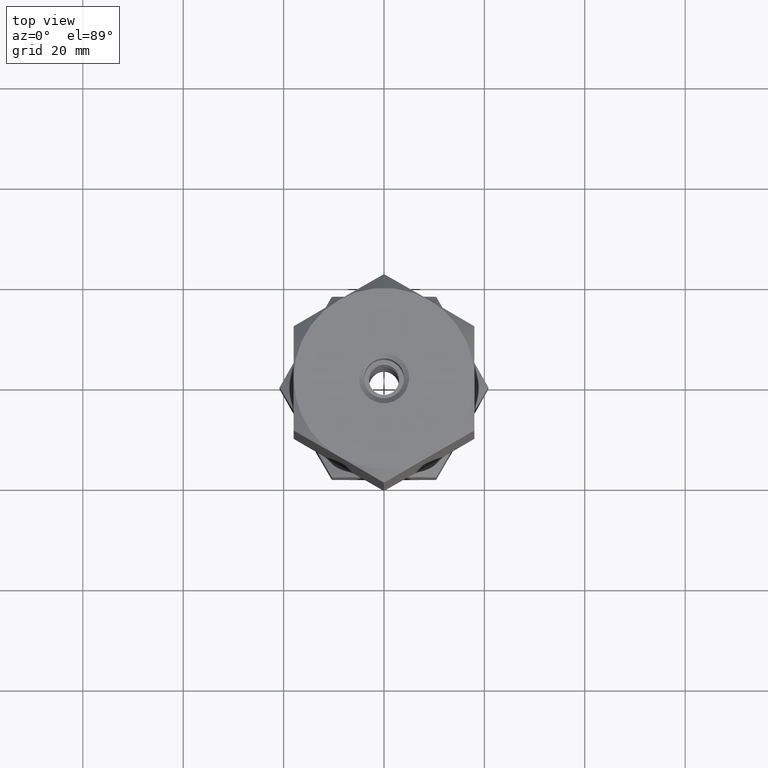
[diagram: clean part render]
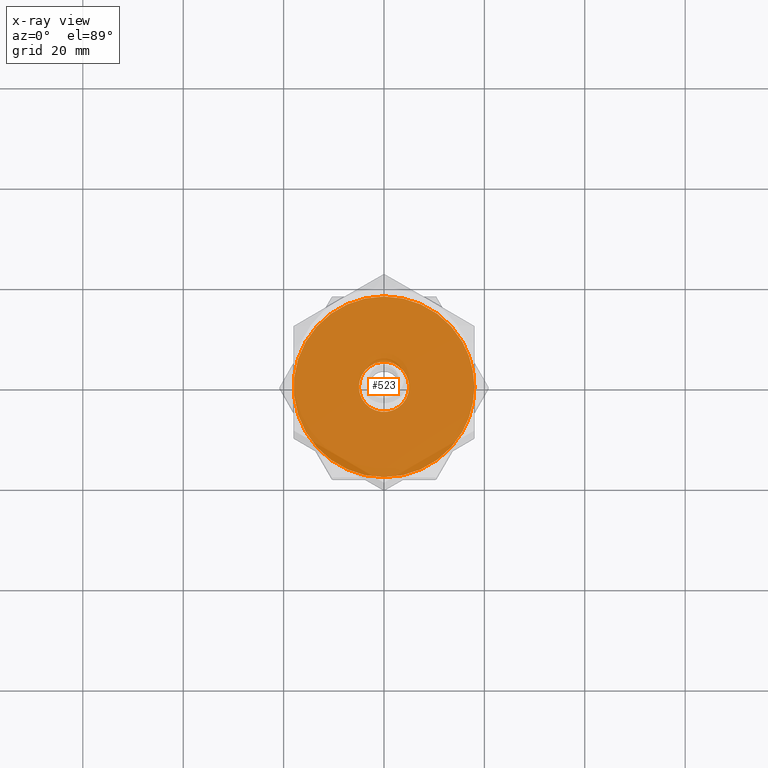
[diagram: x-ray — body ghosted, one internal face saturated and labeled with its STEP entity id]
A machine part, top view, then the same camera in x-ray: the body is ghosted and one INTERNAL B-rep face — a face not visible from any outside direction — is saturated and labeled: STEP entity #523.
In plain terms, the highlighted planar face has unit normal (0, 0, 1).
Its self-contained STEP definition (entity closure, byte-faithful):
#34 = PLANE ( 'NONE',  #1798 ) ;
#35 = AXIS2_PLACEMENT_3D ( 'NONE', #269, #623, #1556 ) ;
#70 = AXIS2_PLACEMENT_3D ( 'NONE', #139, #941, #2040 ) ;
#71 = ORIENTED_EDGE ( 'NONE', *, *, #1909, .T. ) ;
#74 = CIRCLE ( 'NONE', #35, 18.00000000000000000 ) ;
#139 = CARTESIAN_POINT ( 'NONE',  ( 0.000000000000000000, 0.000000000000000000, 33.33333333333330017 ) ) ;
#167 = ORIENTED_EDGE ( 'NONE', *, *, #1706, .T. ) ;
#172 = VERTEX_POINT ( 'NONE', #1578 ) ;
#174 = DIRECTION ( 'NONE',  ( 0.000000000000000000, 0.000000000000000000, 1.000000000000000000 ) ) ;
#194 = CARTESIAN_POINT ( 'NONE',  ( 15.58845726811989252, 9.000000000000003553, 33.33333333333330017 ) ) ;
#201 = VERTEX_POINT ( 'NONE', #194 ) ;
#221 = DIRECTION ( 'NONE',  ( 0.000000000000000000, 0.000000000000000000, -1.000000000000000000 ) ) ;
#258 = DIRECTION ( 'NONE',  ( 0.000000000000000000, 0.000000000000000000, 1.000000000000000000 ) ) ;
#269 = CARTESIAN_POINT ( 'NONE',  ( 0.000000000000000000, 0.000000000000000000, 33.33333333333330017 ) ) ;
#289 = ORIENTED_EDGE ( 'NONE', *, *, #443, .T. ) ;
#320 = DIRECTION ( 'NONE',  ( 1.000000000000000000, 0.000000000000000000, 0.000000000000000000 ) ) ;
#321 = EDGE_CURVE ( 'NONE', #1647, #713, #670, .T. ) ;
#324 = CARTESIAN_POINT ( 'NONE',  ( 0.000000000000000000, 18.00000000000000000, 33.33333333333330017 ) ) ;
#335 = DIRECTION ( 'NONE',  ( 0.000000000000000000, 0.000000000000000000, 1.000000000000000000 ) ) ;
#352 = DIRECTION ( 'NONE',  ( 1.000000000000000000, 0.000000000000000000, 0.000000000000000000 ) ) ;
#367 = EDGE_CURVE ( 'NONE', #201, #1880, #1986, .T. ) ;
#443 = EDGE_CURVE ( 'NONE', #172, #201, #597, .T. ) ;
#448 = ORIENTED_EDGE ( 'NONE', *, *, #321, .T. ) ;
#465 = DIRECTION ( 'NONE',  ( 1.000000000000000000, 0.000000000000000000, 0.000000000000000000 ) ) ;
#523 = ADVANCED_FACE ( 'NONE', ( #995, #1140 ), #34, .T. ) ;
#541 = ORIENTED_EDGE ( 'NONE', *, *, #1836, .T. ) ;
#563 = ORIENTED_EDGE ( 'NONE', *, *, #1143, .T. ) ;
#597 = CIRCLE ( 'NONE', #1608, 18.00000000000000000 ) ;
#605 = ORIENTED_EDGE ( 'NONE', *, *, #828, .T. ) ;
#623 = DIRECTION ( 'NONE',  ( 0.000000000000000000, 0.000000000000000000, 1.000000000000000000 ) ) ;
#636 = DIRECTION ( 'NONE',  ( 1.000000000000000000, 0.000000000000000000, 0.000000000000000000 ) ) ;
#670 = CIRCLE ( 'NONE', #1827, 18.00000000000000000 ) ;
#713 = VERTEX_POINT ( 'NONE', #1428 ) ;
#750 = DIRECTION ( 'NONE',  ( -1.000000000000000000, 0.000000000000000000, 0.000000000000000000 ) ) ;
#803 = CARTESIAN_POINT ( 'NONE',  ( 15.58845726811989429, -9.000000000000001776, 33.33333333333330017 ) ) ;
#811 = CARTESIAN_POINT ( 'NONE',  ( 0.000000000000000000, 0.000000000000000000, 33.33333333333330017 ) ) ;
#828 = EDGE_CURVE ( 'NONE', #1569, #172, #74, .T. ) ;
#869 = CIRCLE ( 'NONE', #1730, 18.00000000000000000 ) ;
#941 = DIRECTION ( 'NONE',  ( 0.000000000000000000, 0.000000000000000000, -1.000000000000000000 ) ) ;
#989 = CARTESIAN_POINT ( 'NONE',  ( 0.000000000000000000, 0.000000000000000000, 33.33333333333330017 ) ) ;
#995 = FACE_BOUND ( 'NONE', #1981, .T. ) ;
#1006 = CARTESIAN_POINT ( 'NONE',  ( 0.000000000000000000, 0.000000000000000000, 33.33333333333330017 ) ) ;
#1033 = AXIS2_PLACEMENT_3D ( 'NONE', #1921, #1803, #1299 ) ;
#1040 = AXIS2_PLACEMENT_3D ( 'NONE', #1067, #221, #750 ) ;
#1059 = CARTESIAN_POINT ( 'NONE',  ( 0.000000000000000000, 0.000000000000000000, 33.33333333333330017 ) ) ;
#1067 = CARTESIAN_POINT ( 'NONE',  ( 0.000000000000000000, 0.000000000000000000, 33.33333333333330017 ) ) ;
#1095 = AXIS2_PLACEMENT_3D ( 'NONE', #1847, #1911, #320 ) ;
#1140 = FACE_OUTER_BOUND ( 'NONE', #1260, .T. ) ;
#1143 = EDGE_CURVE ( 'NONE', #1552, #1312, #1160, .T. ) ;
#1160 = CIRCLE ( 'NONE', #1040, 5.000000000000000000 ) ;
#1162 = CARTESIAN_POINT ( 'NONE',  ( -5.000000000000000000, 0.000000000000000000, 33.33333333333330017 ) ) ;
#1197 = CIRCLE ( 'NONE', #1033, 18.00000000000000000 ) ;
#1260 = EDGE_LOOP ( 'NONE', ( #605, #289, #1392, #71, #448, #541, #1858 ) ) ;
#1299 = DIRECTION ( 'NONE',  ( 1.000000000000000000, 0.000000000000000000, 0.000000000000000000 ) ) ;
#1312 = VERTEX_POINT ( 'NONE', #1644 ) ;
#1324 = EDGE_CURVE ( 'NONE', #1637, #1569, #1197, .T. ) ;
#1392 = ORIENTED_EDGE ( 'NONE', *, *, #367, .T. ) ;
#1428 = CARTESIAN_POINT ( 'NONE',  ( -15.58845726811989607, -9.000000000000003553, 33.33333333333330017 ) ) ;
#1440 = AXIS2_PLACEMENT_3D ( 'NONE', #989, #1905, #352 ) ;
#1541 = CIRCLE ( 'NONE', #1440, 18.00000000000000000 ) ;
#1552 = VERTEX_POINT ( 'NONE', #1162 ) ;
#1556 = DIRECTION ( 'NONE',  ( 1.000000000000000000, 0.000000000000000000, 0.000000000000000000 ) ) ;
#1562 = DIRECTION ( 'NONE',  ( 1.000000000000000000, 0.000000000000000000, 0.000000000000000000 ) ) ;
#1569 = VERTEX_POINT ( 'NONE', #803 ) ;
#1578 = CARTESIAN_POINT ( 'NONE',  ( 18.00000000000000000, 0.000000000000000000, 33.33333333333330017 ) ) ;
#1606 = CIRCLE ( 'NONE', #70, 5.000000000000000000 ) ;
#1608 = AXIS2_PLACEMENT_3D ( 'NONE', #1761, #1879, #465 ) ;
#1637 = VERTEX_POINT ( 'NONE', #1673 ) ;
#1644 = CARTESIAN_POINT ( 'NONE',  ( 5.000000000000000000, 6.123233995736766282E-16, 33.33333333333330017 ) ) ;
#1647 = VERTEX_POINT ( 'NONE', #1968 ) ;
#1673 = CARTESIAN_POINT ( 'NONE',  ( 3.004629197474318851E-15, -18.00000000000000000, 33.33333333333330017 ) ) ;
#1706 = EDGE_CURVE ( 'NONE', #1312, #1552, #1606, .T. ) ;
#1730 = AXIS2_PLACEMENT_3D ( 'NONE', #811, #335, #636 ) ;
#1761 = CARTESIAN_POINT ( 'NONE',  ( 0.000000000000000000, 0.000000000000000000, 33.33333333333330017 ) ) ;
#1776 = DIRECTION ( 'NONE',  ( 1.000000000000000000, 0.000000000000000000, -0.000000000000000000 ) ) ;
#1798 = AXIS2_PLACEMENT_3D ( 'NONE', #1006, #174, #1776 ) ;
#1803 = DIRECTION ( 'NONE',  ( 0.000000000000000000, 0.000000000000000000, 1.000000000000000000 ) ) ;
#1827 = AXIS2_PLACEMENT_3D ( 'NONE', #1059, #258, #1562 ) ;
#1836 = EDGE_CURVE ( 'NONE', #713, #1637, #1541, .T. ) ;
#1847 = CARTESIAN_POINT ( 'NONE',  ( 0.000000000000000000, 0.000000000000000000, 33.33333333333330017 ) ) ;
#1858 = ORIENTED_EDGE ( 'NONE', *, *, #1324, .T. ) ;
#1879 = DIRECTION ( 'NONE',  ( 0.000000000000000000, 0.000000000000000000, 1.000000000000000000 ) ) ;
#1880 = VERTEX_POINT ( 'NONE', #324 ) ;
#1905 = DIRECTION ( 'NONE',  ( 0.000000000000000000, 0.000000000000000000, 1.000000000000000000 ) ) ;
#1909 = EDGE_CURVE ( 'NONE', #1880, #1647, #869, .T. ) ;
#1911 = DIRECTION ( 'NONE',  ( 0.000000000000000000, 0.000000000000000000, 1.000000000000000000 ) ) ;
#1921 = CARTESIAN_POINT ( 'NONE',  ( 0.000000000000000000, 0.000000000000000000, 33.33333333333330017 ) ) ;
#1968 = CARTESIAN_POINT ( 'NONE',  ( -15.58845726811989607, 8.999999999999996447, 33.33333333333330017 ) ) ;
#1981 = EDGE_LOOP ( 'NONE', ( #563, #167 ) ) ;
#1986 = CIRCLE ( 'NONE', #1095, 18.00000000000000000 ) ;
#2040 = DIRECTION ( 'NONE',  ( -1.000000000000000000, 0.000000000000000000, 0.000000000000000000 ) ) ;